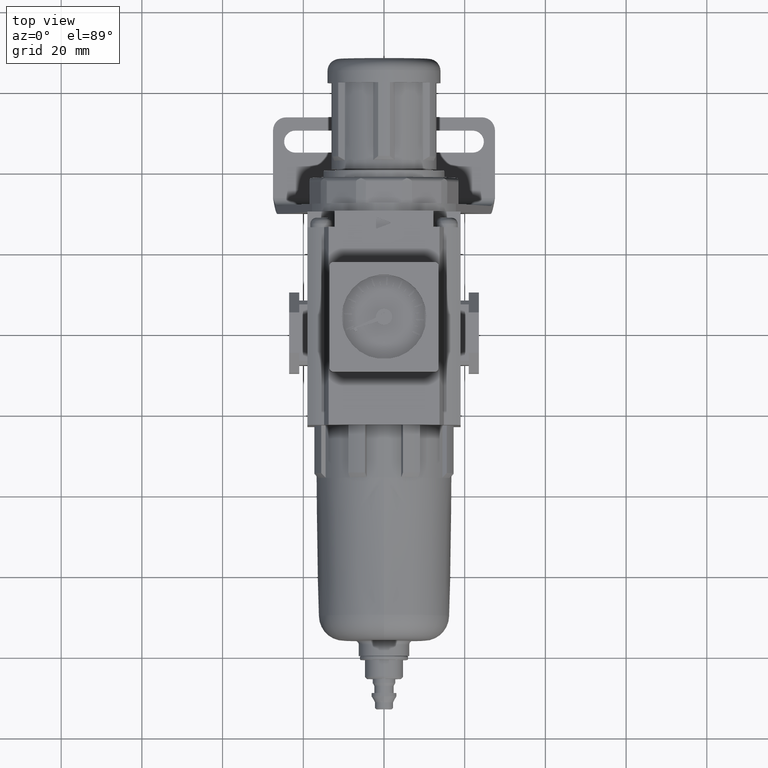
[diagram: clean part render]
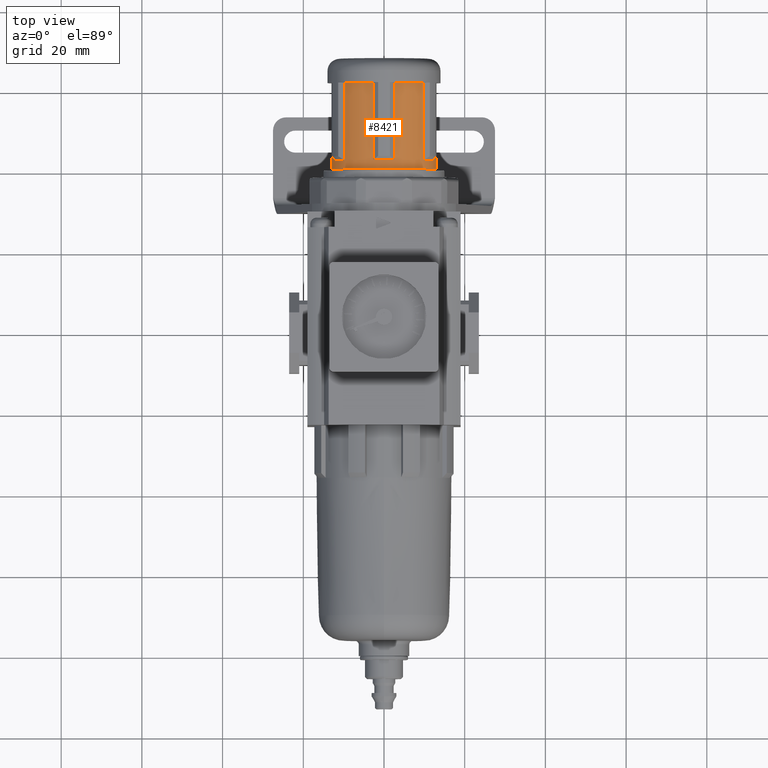
[diagram: same view with one face highlighted and labeled with its STEP entity id]
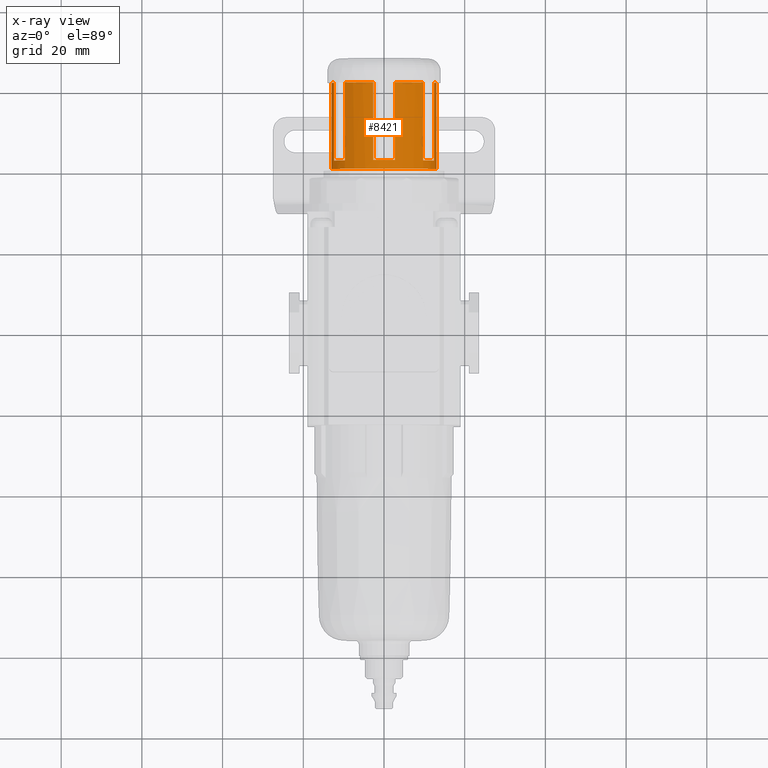
[diagram: x-ray of the same camera — body ghosted, the highlighted face saturated]
A machine part, top view. The second image highlights one B-rep face of the part: STEP entity #8421.
The next image is the same camera in x-ray: the body ghosted, the highlighted face saturated — about 0% of this face is hidden behind the body in this view.
In plain terms, the highlighted cylindrical surface (partial cylindrical patch) has radius 13 mm, axis along (0, -1, -0).
Its self-contained STEP definition (entity closure, byte-faithful):
#180 = CIRCLE ( 'NONE', #6816, 13.00000000000000200 ) ;
#366 = VERTEX_POINT ( 'NONE', #15060 ) ;
#369 = CARTESIAN_POINT ( 'NONE',  ( 12.99999999999997900, 62.00000000000000700, 0.0000000000000000000 ) ) ;
#419 = DIRECTION ( 'NONE',  ( -1.826024711554526800E-016, 1.000000000000000000, -3.162767576288761800E-016 ) ) ;
#513 = CARTESIAN_POINT ( 'NONE',  ( -2.669688316832671000, 42.70000000000000300, 12.72292278884719400 ) ) ;
#549 = EDGE_CURVE ( 'NONE', #1884, #14503, #8724, .T. ) ;
#678 = VERTEX_POINT ( 'NONE', #8213 ) ;
#708 = LINE ( 'NONE', #4506, #10474 ) ;
#773 = EDGE_CURVE ( 'NONE', #5089, #16175, #6334, .T. ) ;
#950 = LINE ( 'NONE', #1702, #7295 ) ;
#1198 = ORIENTED_EDGE ( 'NONE', *, *, #8340, .T. ) ;
#1447 = EDGE_CURVE ( 'NONE', #366, #12806, #9896, .T. ) ;
#1514 = DIRECTION ( 'NONE',  ( 3.652049423109068300E-016, -1.000000000000000000, 0.0000000000000000000 ) ) ;
#1702 = CARTESIAN_POINT ( 'NONE',  ( -12.35321850394597300, 42.70000000000000300, 4.049443491859956400 ) ) ;
#1884 = VERTEX_POINT ( 'NONE', #7833 ) ;
#1929 = CARTESIAN_POINT ( 'NONE',  ( -7.797125518338017400E-015, 42.70000000000000300, 1.350501755075290100E-014 ) ) ;
#2027 = CARTESIAN_POINT ( 'NONE',  ( -1.559425103667571900E-014, 42.70000000000000300, 0.0000000000000000000 ) ) ;
#2149 = CARTESIAN_POINT ( 'NONE',  ( -2.264270642327622200E-014, 62.00000000000000000, 0.0000000000000000000 ) ) ;
#2199 = DIRECTION ( 'NONE',  ( 3.652049423109068300E-016, -1.000000000000000000, 0.0000000000000000000 ) ) ;
#2305 = AXIS2_PLACEMENT_3D ( 'NONE', #9816, #2199, #11071 ) ;
#2491 = ORIENTED_EDGE ( 'NONE', *, *, #1447, .T. ) ;
#2623 = ORIENTED_EDGE ( 'NONE', *, *, #2858, .F. ) ;
#2657 = VERTEX_POINT ( 'NONE', #5048 ) ;
#2819 = AXIS2_PLACEMENT_3D ( 'NONE', #1929, #10819, #3220 ) ;
#2858 = EDGE_CURVE ( 'NONE', #16175, #14087, #12184, .T. ) ;
#2859 = ORIENTED_EDGE ( 'NONE', *, *, #11592, .T. ) ;
#3108 = CARTESIAN_POINT ( 'NONE',  ( -2.669688316832671000, 42.70000000000000300, 12.72292278884719400 ) ) ;
#3134 = DIRECTION ( 'NONE',  ( 1.000000000000000000, 5.337610695313251400E-016, 0.0000000000000000000 ) ) ;
#3191 = ORIENTED_EDGE ( 'NONE', *, *, #7753, .F. ) ;
#3220 = DIRECTION ( 'NONE',  ( 0.5000000000000099900, 5.337610695313251400E-016, -0.8660254037844328200 ) ) ;
#3306 = DIRECTION ( 'NONE',  ( 1.000000000000000000, 5.337610695313251400E-016, 0.0000000000000000000 ) ) ;
#3324 = VECTOR ( 'NONE', #14246, 1000.000000000000000 ) ;
#3426 = DIRECTION ( 'NONE',  ( 1.000000000000000000, 5.337610695313251400E-016, 0.0000000000000000000 ) ) ;
#3741 = LINE ( 'NONE', #4097, #3324 ) ;
#4097 = CARTESIAN_POINT ( 'NONE',  ( 12.35321850394589800, 42.70000000000000300, 4.049443491860155400 ) ) ;
#4401 = VERTEX_POINT ( 'NONE', #8047 ) ;
#4506 = CARTESIAN_POINT ( 'NONE',  ( 9.683530187113188200, 42.70000000000000300, 8.673479296987322200 ) ) ;
#4547 = ORIENTED_EDGE ( 'NONE', *, *, #9797, .T. ) ;
#4647 = DIRECTION ( 'NONE',  ( -1.826024711554526800E-016, 1.000000000000000000, -3.162767576288761300E-016 ) ) ;
#4655 = EDGE_LOOP ( 'NONE', ( #7973, #10308, #3191, #10787, #2491, #13386, #5839, #16239, #4547, #13684, #15732, #2859, #7234, #2623, #5685, #1198 ) ) ;
#5048 = CARTESIAN_POINT ( 'NONE',  ( -12.35321850394599300, 61.99999999999999300, 4.049443491859954700 ) ) ;
#5089 = VERTEX_POINT ( 'NONE', #13061 ) ;
#5179 = CIRCLE ( 'NONE', #2819, 13.00000000000000200 ) ;
#5271 = VERTEX_POINT ( 'NONE', #5808 ) ;
#5344 = VECTOR ( 'NONE', #5455, 1000.000000000000000 ) ;
#5424 = VECTOR ( 'NONE', #7111, 1000.000000000000000 ) ;
#5455 = DIRECTION ( 'NONE',  ( -3.652049423109068300E-016, 1.000000000000000000, -0.0000000000000000000 ) ) ;
#5685 = ORIENTED_EDGE ( 'NONE', *, *, #773, .F. ) ;
#5808 = CARTESIAN_POINT ( 'NONE',  ( 12.35321850394588800, 42.70000000000000300, 4.049443491860151800 ) ) ;
#5812 = EDGE_CURVE ( 'NONE', #5271, #12806, #3741, .T. ) ;
#5839 = ORIENTED_EDGE ( 'NONE', *, *, #6131, .F. ) ;
#6114 = FACE_OUTER_BOUND ( 'NONE', #4655, .T. ) ;
#6131 = EDGE_CURVE ( 'NONE', #15944, #5271, #5179, .T. ) ;
#6334 = CIRCLE ( 'NONE', #9694, 13.00000000000000200 ) ;
#6572 = EDGE_CURVE ( 'NONE', #366, #13959, #15918, .T. ) ;
#6816 = AXIS2_PLACEMENT_3D ( 'NONE', #2149, #11035, #3426 ) ;
#6970 = VERTEX_POINT ( 'NONE', #14692 ) ;
#7008 = EDGE_CURVE ( 'NONE', #678, #14087, #16313, .T. ) ;
#7111 = DIRECTION ( 'NONE',  ( -1.826024711554526800E-016, 1.000000000000000000, -3.162767576288761800E-016 ) ) ;
#7126 = CARTESIAN_POINT ( 'NONE',  ( -9.683530187113335700, 42.70000000000000300, 8.673479296987171200 ) ) ;
#7234 = ORIENTED_EDGE ( 'NONE', *, *, #7008, .T. ) ;
#7276 = AXIS2_PLACEMENT_3D ( 'NONE', #2027, #10922, #3306 ) ;
#7286 = CARTESIAN_POINT ( 'NONE',  ( -2.264270642327622200E-014, 62.00000000000000000, 0.0000000000000000000 ) ) ;
#7295 = VECTOR ( 'NONE', #419, 1000.000000000000000 ) ;
#7428 = DIRECTION ( 'NONE',  ( 3.652049423109068300E-016, -1.000000000000000000, 0.0000000000000000000 ) ) ;
#7622 = AXIS2_PLACEMENT_3D ( 'NONE', #12027, #13301, #3134 ) ;
#7670 = VECTOR ( 'NONE', #9409, 1000.000000000000000 ) ;
#7753 = EDGE_CURVE ( 'NONE', #13959, #6970, #12321, .T. ) ;
#7833 = CARTESIAN_POINT ( 'NONE',  ( 2.669688316832640000, 42.70000000000000300, 12.72292278884719400 ) ) ;
#7973 = ORIENTED_EDGE ( 'NONE', *, *, #10283, .T. ) ;
#8047 = CARTESIAN_POINT ( 'NONE',  ( -13.00000000000002300, 61.99999999999999300, 1.592040838891559700E-015 ) ) ;
#8213 = CARTESIAN_POINT ( 'NONE',  ( -2.669688316832678200, 62.00000000000000000, 12.72292278884719400 ) ) ;
#8340 = EDGE_CURVE ( 'NONE', #5089, #2657, #950, .T. ) ;
#8421 = ADVANCED_FACE ( 'NONE', ( #6114 ), #9111, .T. ) ;
#8577 = DIRECTION ( 'NONE',  ( 1.000000000000000000, 5.337610695313251400E-016, 0.0000000000000000000 ) ) ;
#8642 = CARTESIAN_POINT ( 'NONE',  ( 2.669688316832632900, 62.00000000000000000, 12.72292278884719400 ) ) ;
#8724 = LINE ( 'NONE', #11798, #5344 ) ;
#8842 = CARTESIAN_POINT ( 'NONE',  ( -13.00000000000002300, 61.99999999999999300, 1.592040838891559300E-015 ) ) ;
#9062 = AXIS2_PLACEMENT_3D ( 'NONE', #9118, #1514, #10410 ) ;
#9111 = CYLINDRICAL_SURFACE ( 'NONE', #7622, 13.00000000000000200 ) ;
#9112 = CARTESIAN_POINT ( 'NONE',  ( 12.35321850394588100, 62.00000000000000700, 4.049443491860156300 ) ) ;
#9118 = CARTESIAN_POINT ( 'NONE',  ( -2.264270642327622200E-014, 62.00000000000000000, 0.0000000000000000000 ) ) ;
#9214 = VERTEX_POINT ( 'NONE', #11338 ) ;
#9409 = DIRECTION ( 'NONE',  ( -3.652049423109068300E-016, 1.000000000000000000, -0.0000000000000000000 ) ) ;
#9574 = VECTOR ( 'NONE', #11819, 1000.000000000000000 ) ;
#9694 = AXIS2_PLACEMENT_3D ( 'NONE', #12286, #4647, #13549 ) ;
#9797 = EDGE_CURVE ( 'NONE', #9214, #14503, #14488, .T. ) ;
#9816 = CARTESIAN_POINT ( 'NONE',  ( -1.482732065782281800E-014, 40.59999999999999400, 0.0000000000000000000 ) ) ;
#9896 = CIRCLE ( 'NONE', #9062, 13.00000000000000200 ) ;
#10283 = EDGE_CURVE ( 'NONE', #2657, #4401, #180, .T. ) ;
#10308 = ORIENTED_EDGE ( 'NONE', *, *, #12650, .T. ) ;
#10332 = CARTESIAN_POINT ( 'NONE',  ( 12.99999999999998600, 40.60000000000000100, 0.0000000000000000000 ) ) ;
#10410 = DIRECTION ( 'NONE',  ( 1.000000000000000000, 5.337610695313251400E-016, 0.0000000000000000000 ) ) ;
#10457 = VECTOR ( 'NONE', #12632, 1000.000000000000000 ) ;
#10474 = VECTOR ( 'NONE', #10915, 1000.000000000000000 ) ;
#10787 = ORIENTED_EDGE ( 'NONE', *, *, #6572, .F. ) ;
#10819 = DIRECTION ( 'NONE',  ( -1.826024711554571100E-016, 1.000000000000000000, 3.162767576288735700E-016 ) ) ;
#10835 = LINE ( 'NONE', #8842, #10457 ) ;
#10915 = DIRECTION ( 'NONE',  ( -1.826024711554571400E-016, 1.000000000000000000, 3.162767576288735700E-016 ) ) ;
#10922 = DIRECTION ( 'NONE',  ( -3.652049423109068300E-016, 1.000000000000000000, -0.0000000000000000000 ) ) ;
#11035 = DIRECTION ( 'NONE',  ( 3.652049423109068300E-016, -1.000000000000000000, 0.0000000000000000000 ) ) ;
#11071 = DIRECTION ( 'NONE',  ( 1.000000000000000000, 5.337610695313251400E-016, 0.0000000000000000000 ) ) ;
#11233 = AXIS2_PLACEMENT_3D ( 'NONE', #7286, #16194, #8577 ) ;
#11338 = CARTESIAN_POINT ( 'NONE',  ( 9.683530187113170500, 62.00000000000000700, 8.673479296987315100 ) ) ;
#11592 = EDGE_CURVE ( 'NONE', #13008, #678, #11864, .T. ) ;
#11667 = CARTESIAN_POINT ( 'NONE',  ( 9.683530187113177600, 42.70000000000000300, 8.673479296987313300 ) ) ;
#11798 = CARTESIAN_POINT ( 'NONE',  ( 2.669688316832640000, 42.70000000000000300, 12.72292278884719400 ) ) ;
#11819 = DIRECTION ( 'NONE',  ( 3.652049423109068300E-016, -1.000000000000000000, -0.0000000000000000000 ) ) ;
#11864 = LINE ( 'NONE', #513, #7670 ) ;
#11888 = EDGE_CURVE ( 'NONE', #15944, #9214, #708, .T. ) ;
#12027 = CARTESIAN_POINT ( 'NONE',  ( -2.264270642327622200E-014, 62.00000000000000000, 0.0000000000000000000 ) ) ;
#12184 = LINE ( 'NONE', #14722, #5424 ) ;
#12286 = CARTESIAN_POINT ( 'NONE',  ( -7.797125518337828000E-015, 42.70000000000000300, -1.350501755075300900E-014 ) ) ;
#12321 = CIRCLE ( 'NONE', #2305, 13.00000000000000200 ) ;
#12632 = DIRECTION ( 'NONE',  ( 3.652049423109068300E-016, -1.000000000000000000, -0.0000000000000000000 ) ) ;
#12650 = EDGE_CURVE ( 'NONE', #4401, #6970, #10835, .T. ) ;
#12806 = VERTEX_POINT ( 'NONE', #9112 ) ;
#13008 = VERTEX_POINT ( 'NONE', #3108 ) ;
#13061 = CARTESIAN_POINT ( 'NONE',  ( -12.35321850394598400, 42.70000000000000300, 4.049443491859960000 ) ) ;
#13301 = DIRECTION ( 'NONE',  ( 3.652049423109068300E-016, -1.000000000000000000, -0.0000000000000000000 ) ) ;
#13386 = ORIENTED_EDGE ( 'NONE', *, *, #5812, .F. ) ;
#13549 = DIRECTION ( 'NONE',  ( 0.4999999999999979500, 5.337610695313251400E-016, 0.8660254037844398200 ) ) ;
#13684 = ORIENTED_EDGE ( 'NONE', *, *, #549, .F. ) ;
#13959 = VERTEX_POINT ( 'NONE', #10332 ) ;
#14087 = VERTEX_POINT ( 'NONE', #15919 ) ;
#14246 = DIRECTION ( 'NONE',  ( -1.826024711554571400E-016, 1.000000000000000000, 3.162767576288735700E-016 ) ) ;
#14488 = CIRCLE ( 'NONE', #15409, 13.00000000000000200 ) ;
#14503 = VERTEX_POINT ( 'NONE', #8642 ) ;
#14692 = CARTESIAN_POINT ( 'NONE',  ( -13.00000000000001600, 40.59999999999998700, 1.592040838891559300E-015 ) ) ;
#14722 = CARTESIAN_POINT ( 'NONE',  ( -9.683530187113326800, 42.70000000000000300, 8.673479296987162400 ) ) ;
#15044 = CARTESIAN_POINT ( 'NONE',  ( -2.264270642327622200E-014, 62.00000000000000000, 0.0000000000000000000 ) ) ;
#15060 = CARTESIAN_POINT ( 'NONE',  ( 12.99999999999997900, 62.00000000000000700, 0.0000000000000000000 ) ) ;
#15136 = CIRCLE ( 'NONE', #7276, 13.00000000000000200 ) ;
#15200 = EDGE_CURVE ( 'NONE', #13008, #1884, #15136, .T. ) ;
#15409 = AXIS2_PLACEMENT_3D ( 'NONE', #15044, #7428, #16340 ) ;
#15732 = ORIENTED_EDGE ( 'NONE', *, *, #15200, .F. ) ;
#15918 = LINE ( 'NONE', #369, #9574 ) ;
#15919 = CARTESIAN_POINT ( 'NONE',  ( -9.683530187113346300, 61.99999999999999300, 8.673479296987169500 ) ) ;
#15944 = VERTEX_POINT ( 'NONE', #11667 ) ;
#16175 = VERTEX_POINT ( 'NONE', #7126 ) ;
#16194 = DIRECTION ( 'NONE',  ( 3.652049423109068300E-016, -1.000000000000000000, 0.0000000000000000000 ) ) ;
#16239 = ORIENTED_EDGE ( 'NONE', *, *, #11888, .T. ) ;
#16313 = CIRCLE ( 'NONE', #11233, 13.00000000000000200 ) ;
#16340 = DIRECTION ( 'NONE',  ( 1.000000000000000000, 5.337610695313251400E-016, 0.0000000000000000000 ) ) ;